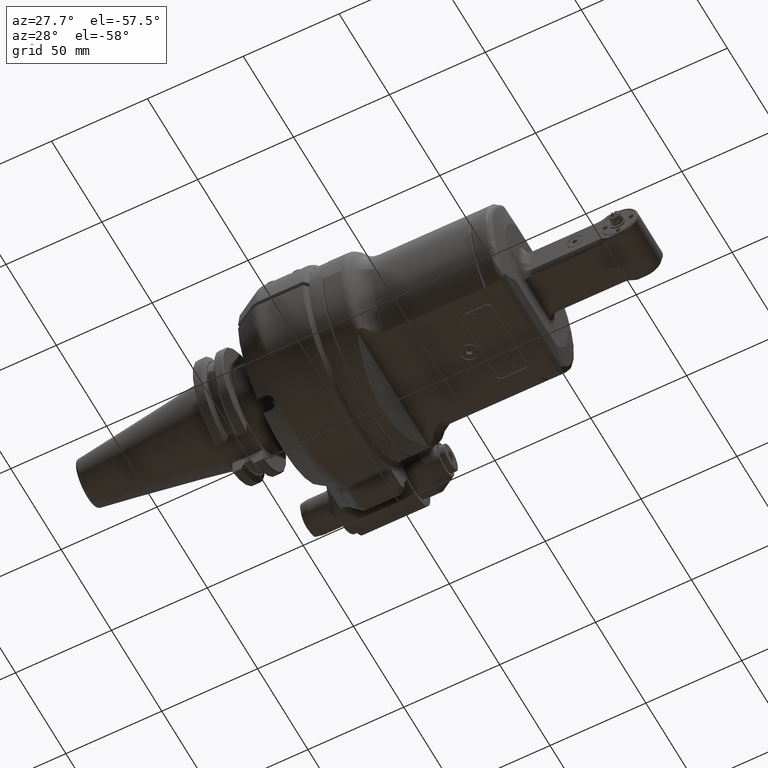
[diagram: clean part render]
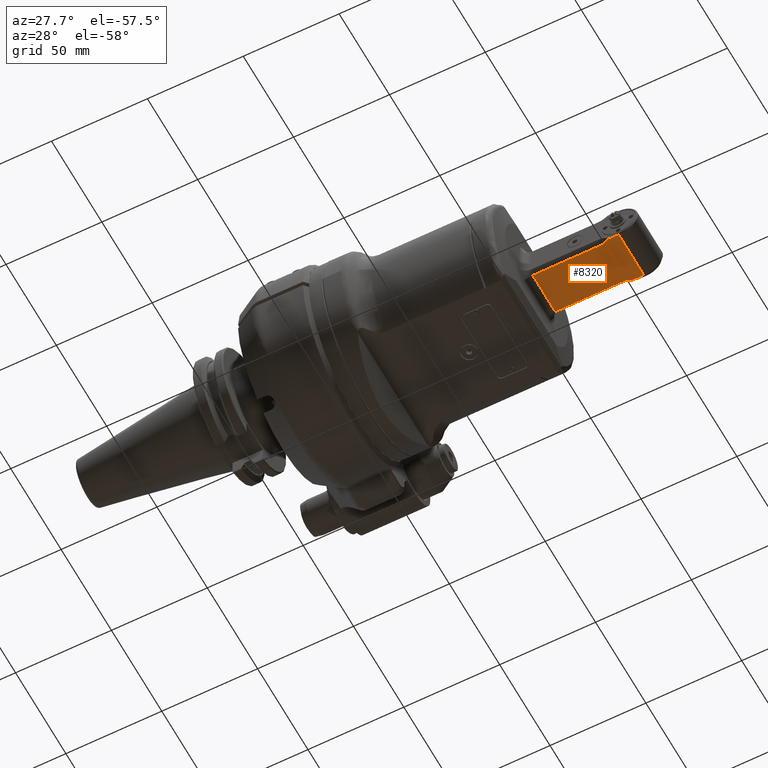
[diagram: same view with one face highlighted and labeled with its STEP entity id]
A machine part, auxiliary view. The second image highlights one B-rep face of the part: STEP entity #8320.
In plain terms, the highlighted planar face has unit normal (0, 0, 1).
Its self-contained STEP definition (entity closure, byte-faithful):
#258=(
BOUNDED_CURVE()
B_SPLINE_CURVE(2,(#13086,#13087,#13088),.UNSPECIFIED.,.F.,.F.)
B_SPLINE_CURVE_WITH_KNOTS((3,3),(5.20902458567988,5.2748787531582),
 .UNSPECIFIED.)
CURVE()
GEOMETRIC_REPRESENTATION_ITEM()
RATIONAL_B_SPLINE_CURVE((1.11301530317362,1.10447190167208,1.09569442025541))
REPRESENTATION_ITEM('')
);
#259=(
BOUNDED_CURVE()
B_SPLINE_CURVE(2,(#13107,#13108,#13109),.UNSPECIFIED.,.F.,.F.)
B_SPLINE_CURVE_WITH_KNOTS((3,3),(-0.401960358142513,-0.336106201351873),
 .UNSPECIFIED.)
CURVE()
GEOMETRIC_REPRESENTATION_ITEM()
RATIONAL_B_SPLINE_CURVE((1.11301530341908,1.10447190330745,1.09569442335666))
REPRESENTATION_ITEM('')
);
#370=PLANE('',#9100);
#635=FACE_OUTER_BOUND('',#1136,.T.);
#1136=EDGE_LOOP('',(#5679,#5680,#5681,#5682,#5683,#5684,#5685,#5686,#5687,
#5688));
#1701=B_SPLINE_CURVE_WITH_KNOTS('',3,(#13090,#13091,#13092,#13093,#13094,
#13095),.UNSPECIFIED.,.F.,.F.,(4,2,4),(-3.12940599620332,-2.95668292882678,
-2.79548912181598),.UNSPECIFIED.);
#1702=B_SPLINE_CURVE_WITH_KNOTS('',3,(#13100,#13101,#13102,#13103,#13104,
#13105),.UNSPECIFIED.,.F.,.F.,(4,2,4),(3.12940599620331,3.30212906357985,
3.46332286889342),.UNSPECIFIED.);
#1853=LINE('',#13076,#2431);
#1854=LINE('',#13082,#2432);
#1855=LINE('',#13084,#2433);
#1856=LINE('',#13097,#2434);
#1857=LINE('',#13098,#2435);
#1858=LINE('',#13110,#2436);
#2431=VECTOR('',#10172,35.11836509642);
#2432=VECTOR('',#10179,25.);
#2433=VECTOR('',#10180,10.);
#2434=VECTOR('',#10181,35.11836509642);
#2435=VECTOR('',#10182,22.360679775);
#2436=VECTOR('',#10183,5.83792617049904);
#3475=VERTEX_POINT('',#13074);
#3476=VERTEX_POINT('',#13075);
#3477=VERTEX_POINT('',#13080);
#3478=VERTEX_POINT('',#13081);
#3479=VERTEX_POINT('',#13083);
#3480=VERTEX_POINT('',#13085);
#3481=VERTEX_POINT('',#13089);
#3482=VERTEX_POINT('',#13096);
#3483=VERTEX_POINT('',#13099);
#3484=VERTEX_POINT('',#13106);
#4326=EDGE_CURVE('',#3475,#3476,#1853,.T.);
#4329=EDGE_CURVE('',#3477,#3478,#1854,.T.);
#4330=EDGE_CURVE('',#3479,#3477,#1855,.T.);
#4331=EDGE_CURVE('',#3480,#3479,#258,.T.);
#4332=EDGE_CURVE('',#3481,#3480,#1701,.T.);
#4333=EDGE_CURVE('',#3482,#3481,#1856,.T.);
#4334=EDGE_CURVE('',#3476,#3482,#1857,.T.);
#4335=EDGE_CURVE('',#3475,#3483,#1702,.T.);
#4336=EDGE_CURVE('',#3483,#3484,#259,.T.);
#4337=EDGE_CURVE('',#3478,#3484,#1858,.T.);
#5679=ORIENTED_EDGE('',*,*,#4329,.F.);
#5680=ORIENTED_EDGE('',*,*,#4330,.F.);
#5681=ORIENTED_EDGE('',*,*,#4331,.F.);
#5682=ORIENTED_EDGE('',*,*,#4332,.F.);
#5683=ORIENTED_EDGE('',*,*,#4333,.F.);
#5684=ORIENTED_EDGE('',*,*,#4334,.F.);
#5685=ORIENTED_EDGE('',*,*,#4326,.F.);
#5686=ORIENTED_EDGE('',*,*,#4335,.T.);
#5687=ORIENTED_EDGE('',*,*,#4336,.T.);
#5688=ORIENTED_EDGE('',*,*,#4337,.F.);
#8320=ADVANCED_FACE('',(#635),#370,.F.);
#9100=AXIS2_PLACEMENT_3D('',#13079,#10177,#10178);
#10172=DIRECTION('',(-1.,0.,0.));
#10177=DIRECTION('center_axis',(0.,0.,1.));
#10178=DIRECTION('ref_axis',(1.,0.,0.));
#10179=DIRECTION('',(0.,1.,0.));
#10180=DIRECTION('',(1.,0.,0.));
#10181=DIRECTION('',(1.,0.,0.));
#10182=DIRECTION('',(0.,-1.,0.));
#10183=DIRECTION('',(-0.999999999999993,-8.56852148598594E-8,-8.08394279912595E-8));
#13074=CARTESIAN_POINT('',(120.1183650964,11.1803398875,-10.));
#13075=CARTESIAN_POINT('',(85.,11.1803398875,-10.));
#13076=CARTESIAN_POINT('',(120.1183650964,11.1803398875,-10.));
#13079=CARTESIAN_POINT('Origin',(107.9885,51.0000024,-10.));
#13080=CARTESIAN_POINT('',(130.4885,-12.5,-10.));
#13081=CARTESIAN_POINT('',(130.4885,12.5,-10.));
#13082=CARTESIAN_POINT('',(130.4885,-12.5,-10.));
#13083=CARTESIAN_POINT('',(124.650571725279,-12.499999988154,-10.0000000061655));
#13084=CARTESIAN_POINT('',(118.0492384371,-12.5,-10.));
#13085=CARTESIAN_POINT('',(123.538566531527,-11.9773082030834,-9.99999999962014));
#13086=CARTESIAN_POINT('Ctrl Pts',(123.538566531647,-11.9773082028294,-10.));
#13087=CARTESIAN_POINT('Ctrl Pts',(124.082696173171,-12.2353078965345,-10.));
#13088=CARTESIAN_POINT('Ctrl Pts',(124.650571725596,-12.4999999874866,-10.));
#13089=CARTESIAN_POINT('',(120.1183650964,-11.1803398875,-10.));
#13090=CARTESIAN_POINT('Ctrl Pts',(120.1183650964,-11.1803398874989,-10.));
#13091=CARTESIAN_POINT('Ctrl Pts',(120.694108654322,-11.1803398874989,-10.));
#13092=CARTESIAN_POINT('Ctrl Pts',(121.320041188985,-11.2520956734236,-10.));
#13093=CARTESIAN_POINT('Ctrl Pts',(122.49527819847,-11.5397298086396,-10.));
#13094=CARTESIAN_POINT('Ctrl Pts',(123.047307987965,-11.744377400663,-10.));
#13095=CARTESIAN_POINT('Ctrl Pts',(123.538566531647,-11.9773082028308,-10.));
#13096=CARTESIAN_POINT('',(85.,-11.1803398875,-10.));
#13097=CARTESIAN_POINT('',(85.,-11.1803398875,-10.));
#13098=CARTESIAN_POINT('',(85.,11.1803398875,-10.));
#13099=CARTESIAN_POINT('',(123.538566516977,11.9773081936858,-10.0000000026154));
#13100=CARTESIAN_POINT('Ctrl Pts',(120.1183650964,11.1803398874989,-10.));
#13101=CARTESIAN_POINT('Ctrl Pts',(120.694108654322,11.1803398874989,-10.));
#13102=CARTESIAN_POINT('Ctrl Pts',(121.320041188985,11.2520956734236,-10.));
#13103=CARTESIAN_POINT('Ctrl Pts',(122.495278192496,11.5397298071776,-10.));
#13104=CARTESIAN_POINT('Ctrl Pts',(123.047307976364,11.7443773963006,-10.));
#13105=CARTESIAN_POINT('Ctrl Pts',(123.538566516129,11.9773081954731,-10.));
#13106=CARTESIAN_POINT('',(124.650571606336,12.4999997151737,-10.0000002434995));
#13107=CARTESIAN_POINT('Ctrl Pts',(123.538566516134,11.9773081954735,-10.));
#13108=CARTESIAN_POINT('Ctrl Pts',(124.082696068209,12.2353078468316,-10.));
#13109=CARTESIAN_POINT('Ctrl Pts',(124.650571523348,12.4999998932169,-10.));
#13110=CARTESIAN_POINT('',(130.4885,12.5,-10.));